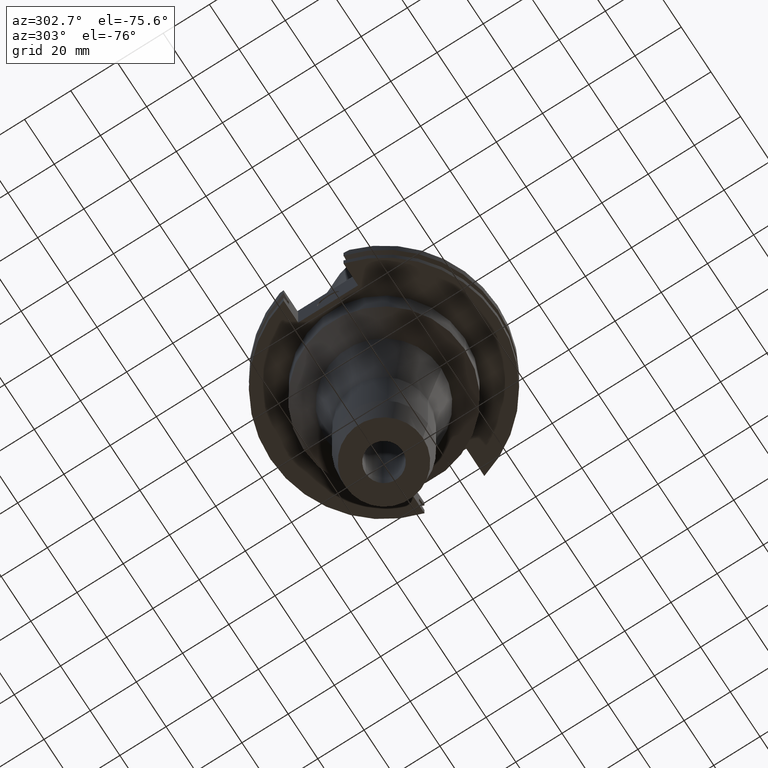
[diagram: clean part render]
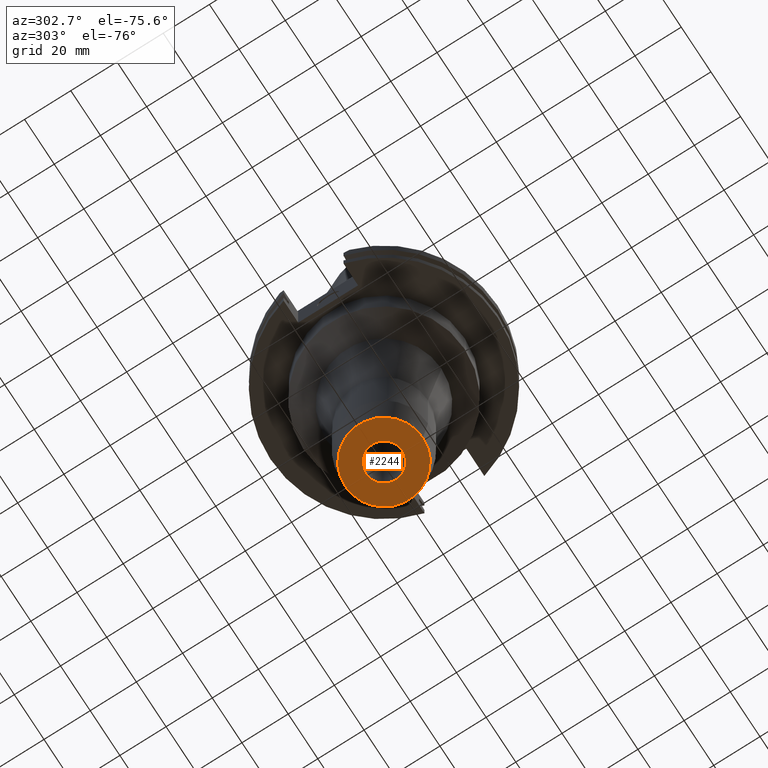
[diagram: same view with one face highlighted and labeled with its STEP entity id]
A machine part, auxiliary view. The second image highlights one B-rep face of the part: STEP entity #2244.
In plain terms, the highlighted planar face has unit normal (0, 0, 1).
Its self-contained STEP definition (entity closure, byte-faithful):
#950=CARTESIAN_POINT('',(0.E0,0.E0,-1.27E2));
#951=DIRECTION('',(0.E0,0.E0,1.E0));
#952=DIRECTION('',(0.E0,-1.E0,0.E0));
#953=AXIS2_PLACEMENT_3D('',#950,#951,#952);
#958=CARTESIAN_POINT('',(0.E0,0.E0,-1.27E2));
#959=DIRECTION('',(0.E0,0.E0,1.E0));
#960=DIRECTION('',(0.E0,1.E0,0.E0));
#961=AXIS2_PLACEMENT_3D('',#958,#959,#960);
#966=CARTESIAN_POINT('',(0.E0,0.E0,-1.27E2));
#967=DIRECTION('',(0.E0,0.E0,-1.E0));
#968=DIRECTION('',(0.E0,-1.E0,0.E0));
#969=AXIS2_PLACEMENT_3D('',#966,#967,#968);
#974=CARTESIAN_POINT('',(0.E0,0.E0,-1.27E2));
#975=DIRECTION('',(0.E0,0.E0,-1.E0));
#976=DIRECTION('',(0.E0,1.E0,0.E0));
#977=AXIS2_PLACEMENT_3D('',#974,#975,#976);
#1364=CARTESIAN_POINT('',(0.E0,1.68455E1,-1.27E2));
#1365=VERTEX_POINT('',#1364);
#1366=CARTESIAN_POINT('',(0.E0,-1.68455E1,-1.27E2));
#1367=VERTEX_POINT('',#1366);
#1368=CARTESIAN_POINT('',(0.E0,-7.9375E0,-1.27E2));
#1369=CARTESIAN_POINT('',(0.E0,7.9375E0,-1.27E2));
#1370=VERTEX_POINT('',#1368);
#1371=VERTEX_POINT('',#1369);
#2229=CARTESIAN_POINT('',(0.E0,0.E0,-1.27E2));
#2230=DIRECTION('',(0.E0,0.E0,1.E0));
#2231=DIRECTION('',(0.E0,1.E0,0.E0));
#2232=AXIS2_PLACEMENT_3D('',#2229,#2230,#2231);
#2233=PLANE('',#2232);
#2234=ORIENTED_EDGE('',*,*,#2222,.T.);
#2235=ORIENTED_EDGE('',*,*,#2211,.T.);
#2236=EDGE_LOOP('',(#2234,#2235));
#2237=FACE_OUTER_BOUND('',#2236,.F.);
#2239=ORIENTED_EDGE('',*,*,#2238,.T.);
#2241=ORIENTED_EDGE('',*,*,#2240,.T.);
#2242=EDGE_LOOP('',(#2239,#2241));
#2243=FACE_BOUND('',#2242,.F.);
#954=CIRCLE('',#953,1.68455E1);
#962=CIRCLE('',#961,1.68455E1);
#970=CIRCLE('',#969,7.9375E0);
#978=CIRCLE('',#977,7.9375E0);
#2211=EDGE_CURVE('',#1365,#1367,#962,.T.);
#2222=EDGE_CURVE('',#1367,#1365,#954,.T.);
#2238=EDGE_CURVE('',#1370,#1371,#970,.T.);
#2240=EDGE_CURVE('',#1371,#1370,#978,.T.);
#2244=ADVANCED_FACE('',(#2237,#2243),#2233,.F.);